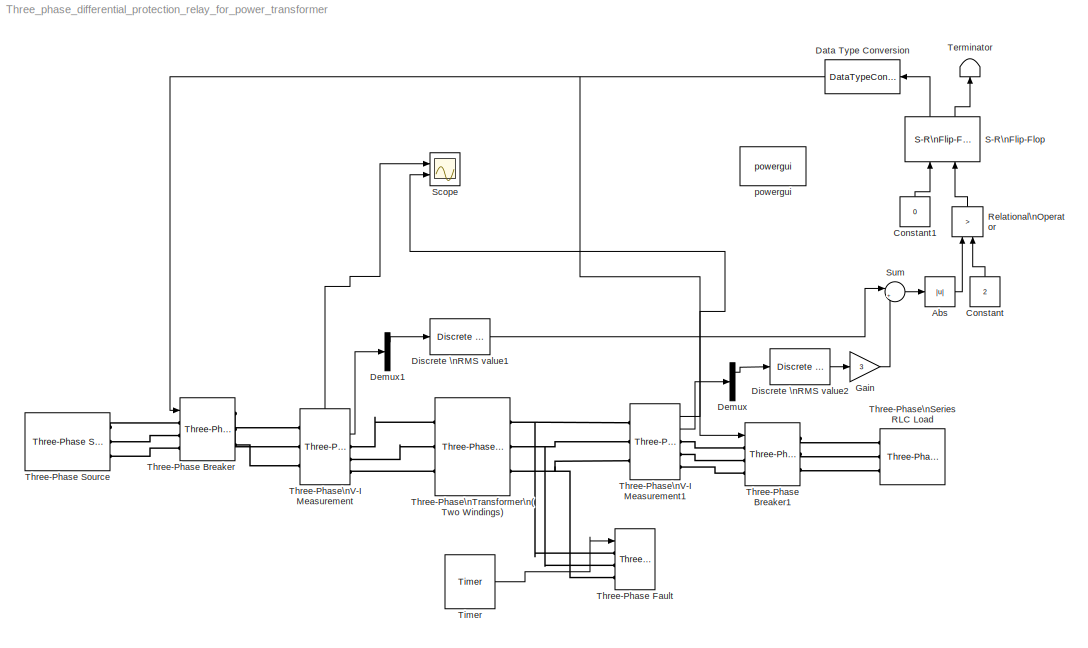
MODEL Three_phase_differential_protection_relay_for_power_transformer
KIND model
BLOCK [Abs] Abs
  OutDataType = fixdt(1, 16)
  OutScaling = 2^0
  SID = 18
  SaturateOnIntegerOverflow = off
BLOCK [Constant] Constant
  OutDataType = fixdt(1, 16)
  OutScaling = 2^0
  SID = 1
  Value = 2
BLOCK [Constant] Constant1
  OutDataType = fixdt(1, 16)
  OutDataTypeMode = boolean
  OutDataTypeStr = boolean
  OutScaling = 2^0
  SID = 27
  Value = 0
BLOCK [DataTypeConversion] Data Type Conversion
  OutDataType = fixdt(1, 16)
  OutDataTypeMode = double
  OutDataTypeStr = double
  OutScaling = 2^0
  RndMeth = Floor
  SID = 2
  SaturateOnIntegerOverflow = off
BLOCK [Demux] Demux
  DisplayOption = bar
  Outputs = 3
  Ports = [1, 3]
  SID = 3
BLOCK [Demux] Demux1
  DisplayOption = bar
  Outputs = 3
  Ports = [1, 3]
  SID = 22
BLOCK [Reference] Discrete \nRMS value1  REF=powerlib_extras/Discrete\nMeasurements/Discrete \nRMS value
  DialogController = POWERSYS.PowerSysDialog
  Freq = 50
  FunctionWithSeparateData = off
  Mag_Init = 0
  Ports = [1, 1]
  RTWMemSecDataConstants = Inherit from model
  RTWMemSecDataInternal = Inherit from model
  RTWMemSecDataParameters = Inherit from model
  RTWMemSecFuncExecute = Inherit from model
  RTWMemSecFuncInitTerm = Inherit from model
  SID = 25
  ShowPortLabels = FromPortIcon
  SourceBlock = powerlib_extras/Discrete\nMeasurements/Discrete \nRMS value
  SourceType = Discrete RMS value
  SystemSampleTime = -1
  Ts = .001
BLOCK [Reference] Discrete \nRMS value2  REF=powerlib_extras/Discrete\nMeasurements/Discrete \nRMS value
  DialogController = POWERSYS.PowerSysDialog
  Freq = 50
  FunctionWithSeparateData = off
  Mag_Init = 0
  Ports = [1, 1]
  RTWMemSecDataConstants = Inherit from model
  RTWMemSecDataInternal = Inherit from model
  RTWMemSecDataParameters = Inherit from model
  RTWMemSecFuncExecute = Inherit from model
  RTWMemSecFuncInitTerm = Inherit from model
  SID = 26
  ShowPortLabels = FromPortIcon
  SourceBlock = powerlib_extras/Discrete\nMeasurements/Discrete \nRMS value
  SourceType = Discrete RMS value
  SystemSampleTime = -1
  Ts = 0.001
BLOCK [Gain] Gain
  Gain = 3
  OutDataType = fixdt(1, 16)
  OutDataTypeMode = Inherit via internal rule
  OutDataTypeStr = Inherit: Inherit via internal rule
  OutScaling = 2^0
  ParamDataTypeStr = Inherit: Inherit via internal rule
  ParameterDataType = fixdt(1, 16)
  ParameterDataTypeMode = Inherit via internal rule
  ParameterScaling = 2^0
  SID = 4
  SaturateOnIntegerOverflow = off
BLOCK [RelationalOperator] Relational\nOperator
  InputSameDT = off
  LogicDataType = fixdt(0, 8)
  LogicOutDataTypeMode = boolean
  Operator = >
  OutDataTypeStr = boolean
  Ports = [2, 1]
  SID = 6
BLOCK [Reference] S-R\nFlip-Flop  REF=simulink_extras/Flip Flops/S-R\nFlip-Flop
  FunctionWithSeparateData = off
  Ports = [2, 2]
  RTWMemSecDataConstants = Inherit from model
  RTWMemSecDataInternal = Inherit from model
  RTWMemSecDataParameters = Inherit from model
  RTWMemSecFuncExecute = Inherit from model
  RTWMemSecFuncInitTerm = Inherit from model
  SID = 17
  ShowPortLabels = FromPortIcon
  SourceBlock = simulink_extras/Flip Flops/S-R\nFlip-Flop
  SourceType = SRFlipFlop
  SystemSampleTime = -1
  initial_condition = 1
BLOCK [Scope] Scope
  DataFormat = StructureWithTime
  Decimation = 2
  Floating = off
  MaxDataPoints = 5000000
  NumInputPorts = 2
  Ports = [2]
  SID = 7
  SampleTime = 0
  TickLabels = on
  TimeRange = 0.3
  YMax = 9000~27500
  YMin = -9000~-27500
BLOCK [Sum] Sum
  IconShape = round
  InputSameDT = off
  Inputs = |+-
  OutDataType = fixdt(1, 16)
  OutDataTypeMode = Inherit via internal rule
  OutDataTypeStr = Inherit: Inherit via internal rule
  OutScaling = 2^0
  Ports = [2, 1]
  SID = 8
  SaturateOnIntegerOverflow = off
BLOCK [Terminator] Terminator
  SID = 9
BLOCK [Reference] Three-Phase Breaker  REF=powerlib/Elements/Three-Phase Breaker
  BreakerResistance = 0.001
  DialogController = POWERSYS.PowerSysDialog
  External = on
  FunctionWithSeparateData = off
  InitialState = closed
  Measurements = None
  Ports = [1, 0, 0, 0, 0, 3, 3]
  RTWMemSecDataConstants = Inherit from model
  RTWMemSecDataInternal = Inherit from model
  RTWMemSecDataParameters = Inherit from model
  RTWMemSecFuncExecute = Inherit from model
  RTWMemSecFuncInitTerm = Inherit from model
  SID = 12
  ShowPortLabels = FromPortIcon
  SnubberCapacitance = inf
  SnubberResistance = 1e6
  SourceBlock = powerlib/Elements/Three-Phase Breaker
  SourceType = Three-Phase Breaker
  SwitchA = on
  SwitchB = on
  SwitchC = on
  SwitchTimes = [4/60  10/60]
  SystemSampleTime = -1
BLOCK [Reference] Three-Phase Breaker1  REF=powerlib/Elements/Three-Phase Breaker
  BreakerResistance = 0.001
  DialogController = POWERSYS.PowerSysDialog
  External = on
  FunctionWithSeparateData = off
  InitialState = closed
  Measurements = None
  Ports = [1, 0, 0, 0, 0, 3, 3]
  RTWMemSecDataConstants = Inherit from model
  RTWMemSecDataInternal = Inherit from model
  RTWMemSecDataParameters = Inherit from model
  RTWMemSecFuncExecute = Inherit from model
  RTWMemSecFuncInitTerm = Inherit from model
  SID = 20
  ShowPortLabels = FromPortIcon
  SnubberCapacitance = inf
  SnubberResistance = 1e6
  SourceBlock = powerlib/Elements/Three-Phase Breaker
  SourceType = Three-Phase Breaker
  SwitchA = on
  SwitchB = on
  SwitchC = on
  SwitchTimes = [4/60  10/60]
  SystemSampleTime = -1
BLOCK [Reference] Three-Phase Fault  REF=powerlib/Elements/Three-Phase Fault
  DialogController = POWERSYS.PowerSysDialog
  External = on
  FaultA = on
  FaultB = on
  FaultC = on
  FaultResistance = 0.001
  FunctionWithSeparateData = off
  GroundFault = on
  GroundResistance = 0.001
  InitialStates = [0 0 0]
  Measurements = None
  Ports = [1, 0, 0, 0, 0, 3]
  RTWMemSecDataConstants = Inherit from model
  RTWMemSecDataInternal = Inherit from model
  RTWMemSecDataParameters = Inherit from model
  RTWMemSecFuncExecute = Inherit from model
  RTWMemSecFuncInitTerm = Inherit from model
  SID = 13
  ShowPortLabels = FromPortIcon
  SnubberCapacitance = inf
  SnubberResistance = 1e6
  SourceBlock = powerlib/Elements/Three-Phase Fault
  SourceType = Three-Phase Fault
  SwitchStatus = [1 0]
  SwitchTimes = [ 1/60 5/60]
  SystemSampleTime = -1
BLOCK [Reference] Three-Phase Source  REF=powerlib/Electrical\nSources/Three-Phase Source
  BaseVoltage = 11e3
  DialogController = POWERSYS.PowerSysDialog
  Frequency = 50
  FunctionWithSeparateData = off
  Inductance = 16.58e-3
  InternalConnection = Yg
  PhaseAngle = 0
  Ports = [0, 0, 0, 0, 0, 0, 3]
  RTWMemSecDataConstants = Inherit from model
  RTWMemSecDataInternal = Inherit from model
  RTWMemSecDataParameters = Inherit from model
  RTWMemSecFuncExecute = Inherit from model
  RTWMemSecFuncInitTerm = Inherit from model
  Resistance = 0.8929
  SID = 11
  ShortCircuitLevel = 500e6
  ShowPortLabels = FromPortIcon
  SourceBlock = powerlib/Electrical\nSources/Three-Phase Source
  SourceType = Three-Phase Source
  SpecifyImpedance = on
  SystemSampleTime = -1
  Voltage = 11e3
  XRratio = 7
BLOCK [Reference] Three-Phase\nSeries RLC Load  REF=powerlib/Elements/Three-Phase\nSeries RLC Load
  ActivePower = 150e3
  AttributesFormatString = \\n
  CapacitivePower = 0
  Configuration = Y (grounded)
  DialogController = POWERSYS.PowerSysDialog
  InductivePower = 50e3
  LConnTagsString = A|B|C
  LeftPortType = p1
  Measurements = None
  NominalFrequency = 50
  NominalVoltage = 33e3
  PhysicalDomain = powersysdomain
  Ports = [0, 0, 0, 0, 0, 3]
  RightPortType = p1
  SID = 21
  SourceBlock = powerlib/Elements/Three-Phase\nSeries RLC Load
  SourceType = Three-Phase Series RLC Load
  SubClassName = unknown
BLOCK [Reference] Three-Phase\nTransformer\n(Two Windings)  REF=powerlib/Elements/Three-Phase\nTransformer\n(Two Windings)
  BreakLoop = off
  DataFile = 'hysteresis'
  DataType = off
  DialogController = POWERSYS.PowerSysDialog
  FunctionWithSeparateData = off
  Hysteresis = off
  InitialFluxes = [ 0.8 , -0.8 , 0.7 ]
  Lm = 1e6
  Measurements = None
  MoreParameters = off
  NominalPower = [ 200e6 , 50 ]
  Ports = [0, 0, 0, 0, 0, 3, 3]
  RTWMemSecDataConstants = Inherit from model
  RTWMemSecDataInternal = Inherit from model
  RTWMemSecDataParameters = Inherit from model
  RTWMemSecFuncExecute = Inherit from model
  RTWMemSecFuncInitTerm = Inherit from model
  Rm = 1e6
  SID = 14
  Saturation = [ 0,0 ; 0.0024,1.2 ; 1.0,1.52 ]
  SetInitialFlux = off
  SetSaturation = off
  ShowPortLabels = FromPortIcon
  SourceBlock = powerlib/Elements/Three-Phase\nTransformer\n(Two Windings)
  SourceType = Three-Phase Transformer (Two Windings)
  SystemSampleTime = -1
  TransfoNumber = 1
  UNITS = pu
  Winding1 = [ 11e3 , 0 , 0 ]
  Winding1Connection = Yg
  Winding2 = [ 33e3 , 0 , 0 ]
  Winding2Connection = Yg
BLOCK [Reference] Three-Phase\nV-I Measurement  REF=powerlib/Measurements/Three-Phase\nV-I Measurement
  CurrentMeasurement = yes
  DialogController = POWERSYS.PowerSysDialog
  FunctionWithSeparateData = off
  Ipu = off
  LabelI = Iabc
  LabelV = Vabc
  OutputType = Complex
  PSBequivalent = 0
  Pbase = 100e6
  PhasorSimulation = off
  Ports = [0, 2, 0, 0, 0, 3, 3]
  RTWMemSecDataConstants = Inherit from model
  RTWMemSecDataInternal = Inherit from model
  RTWMemSecDataParameters = Inherit from model
  RTWMemSecFuncExecute = Inherit from model
  RTWMemSecFuncInitTerm = Inherit from model
  SID = 16
  SetLabelI = off
  SetLabelV = off
  ShowPortLabels = FromPortIcon
  SourceBlock = powerlib/Measurements/Three-Phase\nV-I Measurement
  SourceType = Three-Phase VI Measurement
  SystemSampleTime = -1
  Vbase = 500e3
  VoltageMeasurement = phase-to-ground
  Vpu = off
BLOCK [Reference] Three-Phase\nV-I Measurement1  REF=powerlib/Measurements/Three-Phase\nV-I Measurement
  CurrentMeasurement = yes
  DialogController = POWERSYS.PowerSysDialog
  FunctionWithSeparateData = off
  Ipu = off
  LabelI = Iabc
  LabelV = Vabc
  OutputType = Complex
  PSBequivalent = 0
  Pbase = 100e6
  PhasorSimulation = off
  Ports = [0, 2, 0, 0, 0, 3, 3]
  RTWMemSecDataConstants = Inherit from model
  RTWMemSecDataInternal = Inherit from model
  RTWMemSecDataParameters = Inherit from model
  RTWMemSecFuncExecute = Inherit from model
  RTWMemSecFuncInitTerm = Inherit from model
  SID = 19
  SetLabelI = off
  SetLabelV = off
  ShowPortLabels = FromPortIcon
  SourceBlock = powerlib/Measurements/Three-Phase\nV-I Measurement
  SourceType = Three-Phase VI Measurement
  SystemSampleTime = -1
  Vbase = 500e3
  VoltageMeasurement = phase-to-ground
  Vpu = off
BLOCK [Reference] Timer  REF=powerlib_extras/Control \nBlocks/Timer
  DialogController = POWERSYS.PowerSysDialog
  FunctionWithSeparateData = off
  Ports = [0, 1]
  RTWMemSecDataConstants = Inherit from model
  RTWMemSecDataInternal = Inherit from model
  RTWMemSecDataParameters = Inherit from model
  RTWMemSecFuncExecute = Inherit from model
  RTWMemSecFuncInitTerm = Inherit from model
  SID = 31
  ShowPortLabels = FromPortIcon
  SourceBlock = powerlib_extras/Control \nBlocks/Timer
  SourceType = Timer
  SystemSampleTime = -1
  e = [0  1 ]
  t = [ 0  0.15 ]
BLOCK [Reference] powergui  REF=powerlib/powergui
  DisableRonSwitches = off
  DisableSnubberDevices = off
  DisableVfSwitches = off
  DisplayEquations = off
  DisplayStyle = 1
  EnableUseOfTLC = off
  Frange = [0:2:500]
  FreqAxis = off
  FunctionMessages = off
  FunctionWithSeparateData = off
  HookPort = off
  Interpol = off
  MaxFrequency = 1000
  Ports = []
  Priority = 1
  RTWMemSecDataConstants = Inherit from model
  RTWMemSecDataInternal = Inherit from model
  RTWMemSecDataParameters = Inherit from model
  RTWMemSecFuncExecute = Inherit from model
  RTWMemSecFuncInitTerm = Inherit from model
  RestoreLinks = warning
  RmsSteady = 1
  SID = 10
  SPID = off
  SampleTime = 1e-5
  ShowGrid = off
  ShowPortLabels = FromPortIcon
  SourceBlock = powerlib/powergui
  SourceType = PSB option menu block
  StartTime = 0.0
  SwTol = 0
  SystemSampleTime = -1
  Ts = 0
  UserData = DataTag0
  UserDataPersistent = on
  Xlog = on
  Ylog = off
  ZoomFFT = on
  cycles = 1
  display = off
  echomessages = off
  frequency = 60
  frequencyindice = 50
  frequencyindicesteady = 1
  fundamental = 60
  methode = off
  save = off
  variable = ZData
  x0status = blocks
LINE Abs:1 -> Relational\nOperator:1
LINE Constant1:1 -> S-R\nFlip-Flop:1
LINE Constant:1 -> Relational\nOperator:2
NET Data Type Conversion:1 -> Three-Phase Breaker1:1, Three-Phase Breaker:1
LINE Demux1:1 -> Discrete \nRMS value1:1
LINE Demux:1 -> Discrete \nRMS value2:1
LINE Discrete \nRMS value1:1 -> Sum:1
LINE Discrete \nRMS value2:1 -> Gain:1
LINE Gain:1 -> Sum:2
LINE Relational\nOperator:1 -> S-R\nFlip-Flop:2
LINE S-R\nFlip-Flop:1 -> Data Type Conversion:1
LINE S-R\nFlip-Flop:2 -> Terminator:1
LINE Sum:1 -> Abs:1
LINE Three-Phase\nV-I Measurement1:1 -> Scope:2
LINE Three-Phase\nV-I Measurement1:2 -> Demux:1
LINE Three-Phase\nV-I Measurement:1 -> Scope:1
LINE Three-Phase\nV-I Measurement:2 -> Demux1:1
LINE Timer:1 -> Three-Phase Fault:1
PLINE Three-Phase Breaker1:LConn1 -- Three-Phase\nV-I Measurement1:RConn1
PLINE Three-Phase Breaker1:LConn2 -- Three-Phase\nV-I Measurement1:RConn2
PLINE Three-Phase Breaker1:LConn3 -- Three-Phase\nV-I Measurement1:RConn3
PLINE Three-Phase Breaker1:RConn1 -- Three-Phase\nSeries RLC Load:LConn1
PLINE Three-Phase Breaker1:RConn2 -- Three-Phase\nSeries RLC Load:LConn2
PLINE Three-Phase Breaker1:RConn3 -- Three-Phase\nSeries RLC Load:LConn3
PLINE Three-Phase Breaker:LConn1 -- Three-Phase Source:RConn1
PLINE Three-Phase Breaker:LConn2 -- Three-Phase Source:RConn2
PLINE Three-Phase Breaker:LConn3 -- Three-Phase Source:RConn3
PLINE Three-Phase Breaker:RConn1 -- Three-Phase\nV-I Measurement:LConn1
PLINE Three-Phase Breaker:RConn2 -- Three-Phase\nV-I Measurement:LConn2
PLINE Three-Phase Breaker:RConn3 -- Three-Phase\nV-I Measurement:LConn3
PNET net1: Three-Phase Fault:LConn1 -- Three-Phase\nTransformer\n(Two Windings):RConn1 -- Three-Phase\nV-I Measurement1:LConn1
PNET net2: Three-Phase Fault:LConn2 -- Three-Phase\nTransformer\n(Two Windings):RConn2 -- Three-Phase\nV-I Measurement1:LConn2
PNET net3: Three-Phase Fault:LConn3 -- Three-Phase\nTransformer\n(Two Windings):RConn3 -- Three-Phase\nV-I Measurement1:LConn3
PLINE Three-Phase\nTransformer\n(Two Windings):LConn1 -- Three-Phase\nV-I Measurement:RConn1
PLINE Three-Phase\nTransformer\n(Two Windings):LConn2 -- Three-Phase\nV-I Measurement:RConn2
PLINE Three-Phase\nTransformer\n(Two Windings):LConn3 -- Three-Phase\nV-I Measurement:RConn3
note: NET lines group one-source signal fan-out (src -> all destinations, sorted); 1:1 wires keep LINE; PNET lines group multi-terminal physical nets as a canonical sorted terminal list (undirected conserving connections); 2-terminal nets keep the pairwise PLINE form
